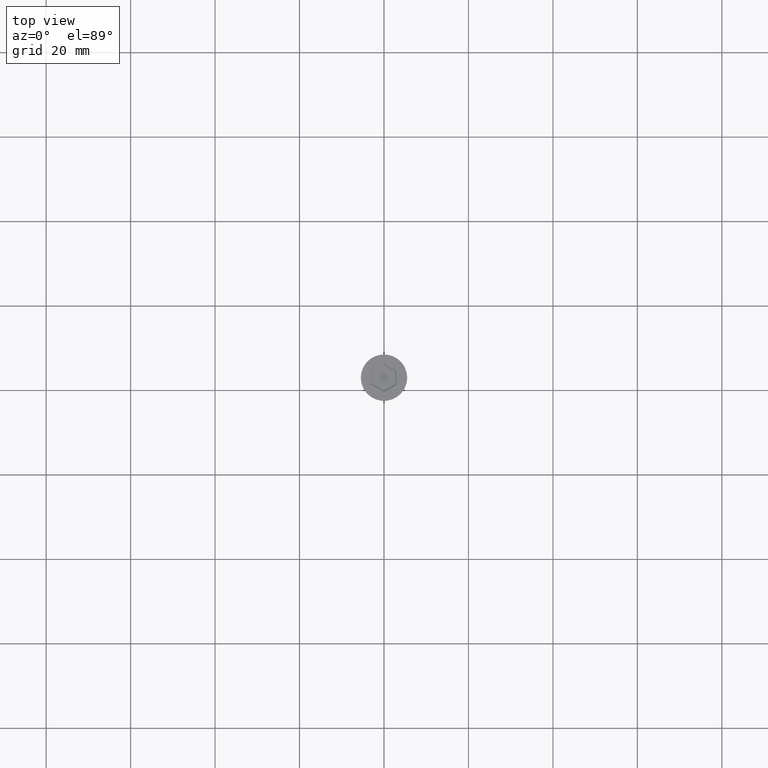
[diagram: clean part render]
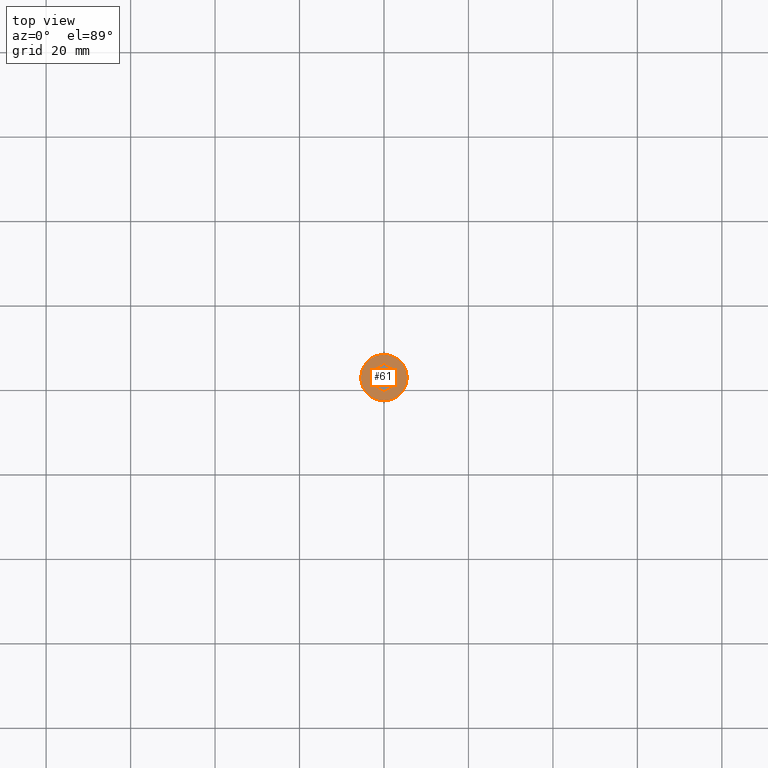
[diagram: same view with one face highlighted and labeled with its STEP entity id]
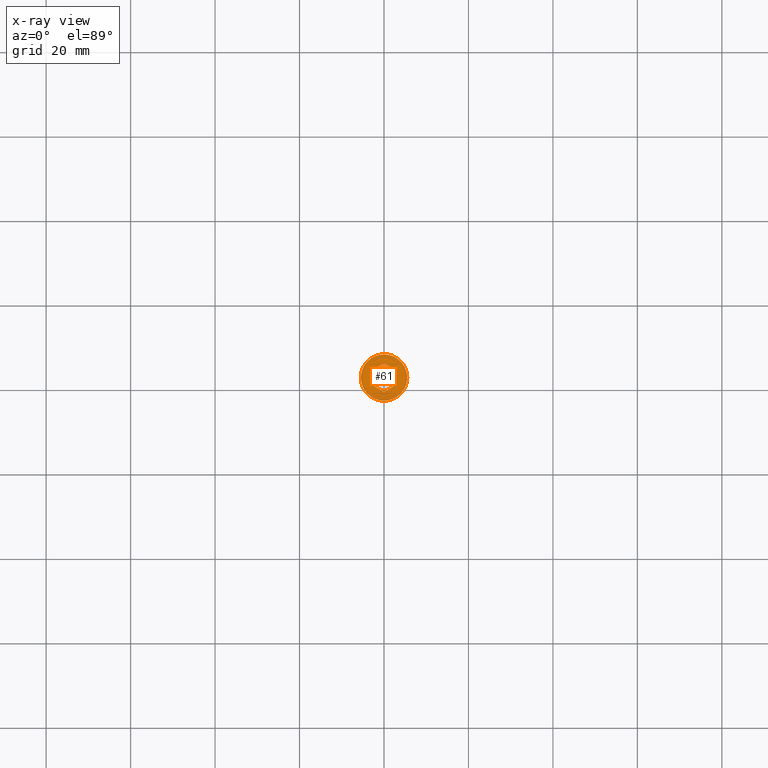
[diagram: x-ray of the same camera — body ghosted, the highlighted face saturated]
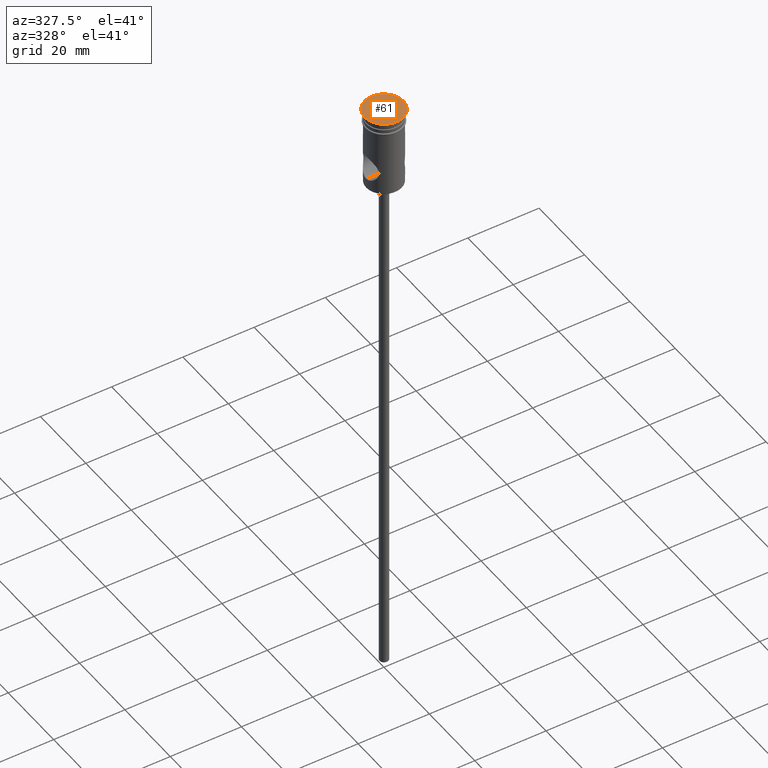
[diagram: same view with one face highlighted and labeled with its STEP entity id]
A machine part, top view. The second image highlights one B-rep face of the part: STEP entity #61.
The next image is the same camera in x-ray: the body ghosted, the highlighted face saturated — about 0% of this face is hidden behind the body in this view.
A second angle (auxiliary view) of the same face is appended — the face is thin or edge-on in the first view.
In plain terms, the highlighted planar face has unit normal (0, -0, 1).
Its self-contained STEP definition (entity closure, byte-faithful):
#28 = VECTOR ( 'NONE', #639, 1000.000000000000000 ) ;
#61 = ADVANCED_FACE ( 'NONE', ( #364, #183 ), #690, .T. ) ;
#87 = CARTESIAN_POINT ( 'NONE',  ( -5.500000000000000000, 6.735557395310442023E-16, 0.000000000000000000 ) ) ;
#95 = LINE ( 'NONE', #345, #1147 ) ;
#126 = CIRCLE ( 'NONE', #169, 5.500000000000000000 ) ;
#147 = DIRECTION ( 'NONE',  ( 1.000000000000000000, 0.000000000000000000, 0.000000000000000000 ) ) ;
#169 = AXIS2_PLACEMENT_3D ( 'NONE', #487, #1027, #147 ) ;
#180 = CARTESIAN_POINT ( 'NONE',  ( -2.899999999999994138, 1.674315780649911600, 0.000000000000000000 ) ) ;
#183 = FACE_OUTER_BOUND ( 'NONE', #1238, .T. ) ;
#233 = ORIENTED_EDGE ( 'NONE', *, *, #525, .T. ) ;
#256 = ORIENTED_EDGE ( 'NONE', *, *, #778, .T. ) ;
#258 = VERTEX_POINT ( 'NONE', #835 ) ;
#268 = VERTEX_POINT ( 'NONE', #87 ) ;
#303 = ORIENTED_EDGE ( 'NONE', *, *, #980, .T. ) ;
#311 = DIRECTION ( 'NONE',  ( 1.000000000000000000, 0.000000000000000000, 0.000000000000000000 ) ) ;
#322 = ORIENTED_EDGE ( 'NONE', *, *, #516, .T. ) ;
#334 = VERTEX_POINT ( 'NONE', #1301 ) ;
#345 = CARTESIAN_POINT ( 'NONE',  ( 2.799999999999996270, 1.732050807568872086, 0.000000000000000000 ) ) ;
#364 = FACE_BOUND ( 'NONE', #1189, .T. ) ;
#382 = CARTESIAN_POINT ( 'NONE',  ( -0.09999999999999764633, 3.290896534380861382, 0.000000000000000000 ) ) ;
#390 = CARTESIAN_POINT ( 'NONE',  ( 2.899999999999992362, -1.674315780649911822, 0.000000000000000000 ) ) ;
#487 = CARTESIAN_POINT ( 'NONE',  ( 0.000000000000000000, 0.000000000000000000, 0.000000000000000000 ) ) ;
#516 = EDGE_CURVE ( 'NONE', #1287, #268, #126, .T. ) ;
#525 = EDGE_CURVE ( 'NONE', #258, #1135, #1251, .T. ) ;
#530 = CARTESIAN_POINT ( 'NONE',  ( -2.799999999999997158, -1.732050807568871864, 0.000000000000000000 ) ) ;
#541 = CARTESIAN_POINT ( 'NONE',  ( 5.500000000000000000, 0.000000000000000000, 0.000000000000000000 ) ) ;
#545 = DIRECTION ( 'NONE',  ( -0.8660254037844385966, 0.5000000000000001110, 0.000000000000000000 ) ) ;
#593 = LINE ( 'NONE', #817, #878 ) ;
#597 = CARTESIAN_POINT ( 'NONE',  ( 2.899999999999992362, -1.558845726811989296, 0.000000000000000000 ) ) ;
#602 = ORIENTED_EDGE ( 'NONE', *, *, #888, .T. ) ;
#605 = CIRCLE ( 'NONE', #672, 5.500000000000000000 ) ;
#639 = DIRECTION ( 'NONE',  ( 0.8660254037844387076, 0.4999999999999998890, 0.000000000000000000 ) ) ;
#648 = VECTOR ( 'NONE', #901, 1000.000000000000000 ) ;
#672 = AXIS2_PLACEMENT_3D ( 'NONE', #834, #1186, #311 ) ;
#690 = PLANE ( 'NONE',  #1242 ) ;
#743 = VECTOR ( 'NONE', #545, 1000.000000000000114 ) ;
#766 = EDGE_CURVE ( 'NONE', #268, #1287, #605, .T. ) ;
#778 = EDGE_CURVE ( 'NONE', #334, #1088, #1054, .T. ) ;
#799 = DIRECTION ( 'NONE',  ( 1.000000000000000000, 0.000000000000000000, 0.000000000000000000 ) ) ;
#817 = CARTESIAN_POINT ( 'NONE',  ( 0.09999999999999654998, -3.290896534380861382, 0.000000000000000000 ) ) ;
#834 = CARTESIAN_POINT ( 'NONE',  ( 0.000000000000000000, 0.000000000000000000, 0.000000000000000000 ) ) ;
#835 = CARTESIAN_POINT ( 'NONE',  ( 2.899999999999992806, 1.674315780649911378, 0.000000000000000000 ) ) ;
#878 = VECTOR ( 'NONE', #1161, 1000.000000000000000 ) ;
#888 = EDGE_CURVE ( 'NONE', #915, #258, #95, .T. ) ;
#892 = ORIENTED_EDGE ( 'NONE', *, *, #1155, .T. ) ;
#895 = DIRECTION ( 'NONE',  ( 0.000000000000000000, -0.000000000000000000, 1.000000000000000000 ) ) ;
#901 = DIRECTION ( 'NONE',  ( -1.391032035867740017E-16, -1.000000000000000000, 0.000000000000000000 ) ) ;
#915 = VERTEX_POINT ( 'NONE', #970 ) ;
#921 = LINE ( 'NONE', #1377, #1388 ) ;
#970 = CARTESIAN_POINT ( 'NONE',  ( -9.683804684061200344E-16, 3.348631561299821868, 0.000000000000000000 ) ) ;
#980 = EDGE_CURVE ( 'NONE', #1088, #1325, #921, .T. ) ;
#1009 = CARTESIAN_POINT ( 'NONE',  ( 0.000000000000000000, 0.000000000000000000, 0.000000000000000000 ) ) ;
#1027 = DIRECTION ( 'NONE',  ( -0.000000000000000000, -0.000000000000000000, 1.000000000000000000 ) ) ;
#1054 = LINE ( 'NONE', #530, #743 ) ;
#1088 = VERTEX_POINT ( 'NONE', #1221 ) ;
#1110 = ORIENTED_EDGE ( 'NONE', *, *, #766, .T. ) ;
#1119 = EDGE_CURVE ( 'NONE', #1135, #334, #593, .T. ) ;
#1135 = VERTEX_POINT ( 'NONE', #390 ) ;
#1147 = VECTOR ( 'NONE', #1427, 1000.000000000000000 ) ;
#1155 = EDGE_CURVE ( 'NONE', #1325, #915, #1362, .T. ) ;
#1161 = DIRECTION ( 'NONE',  ( -0.8660254037844387076, -0.4999999999999998890, 0.000000000000000000 ) ) ;
#1186 = DIRECTION ( 'NONE',  ( -0.000000000000000000, -0.000000000000000000, 1.000000000000000000 ) ) ;
#1189 = EDGE_LOOP ( 'NONE', ( #256, #303, #892, #602, #233, #1247 ) ) ;
#1221 = CARTESIAN_POINT ( 'NONE',  ( -2.899999999999994138, -1.674315780649910934, 0.000000000000000000 ) ) ;
#1238 = EDGE_LOOP ( 'NONE', ( #322, #1110 ) ) ;
#1241 = DIRECTION ( 'NONE',  ( 0.000000000000000000, 1.000000000000000000, 0.000000000000000000 ) ) ;
#1242 = AXIS2_PLACEMENT_3D ( 'NONE', #1009, #895, #799 ) ;
#1247 = ORIENTED_EDGE ( 'NONE', *, *, #1119, .T. ) ;
#1251 = LINE ( 'NONE', #597, #648 ) ;
#1287 = VERTEX_POINT ( 'NONE', #541 ) ;
#1301 = CARTESIAN_POINT ( 'NONE',  ( -4.552601062339046804E-16, -3.348631561299821868, 0.000000000000000000 ) ) ;
#1325 = VERTEX_POINT ( 'NONE', #180 ) ;
#1362 = LINE ( 'NONE', #382, #28 ) ;
#1377 = CARTESIAN_POINT ( 'NONE',  ( -2.899999999999994138, 1.558845726811988852, 0.000000000000000000 ) ) ;
#1388 = VECTOR ( 'NONE', #1241, 1000.000000000000000 ) ;
#1427 = DIRECTION ( 'NONE',  ( 0.8660254037844387076, -0.4999999999999998335, 0.000000000000000000 ) ) ;